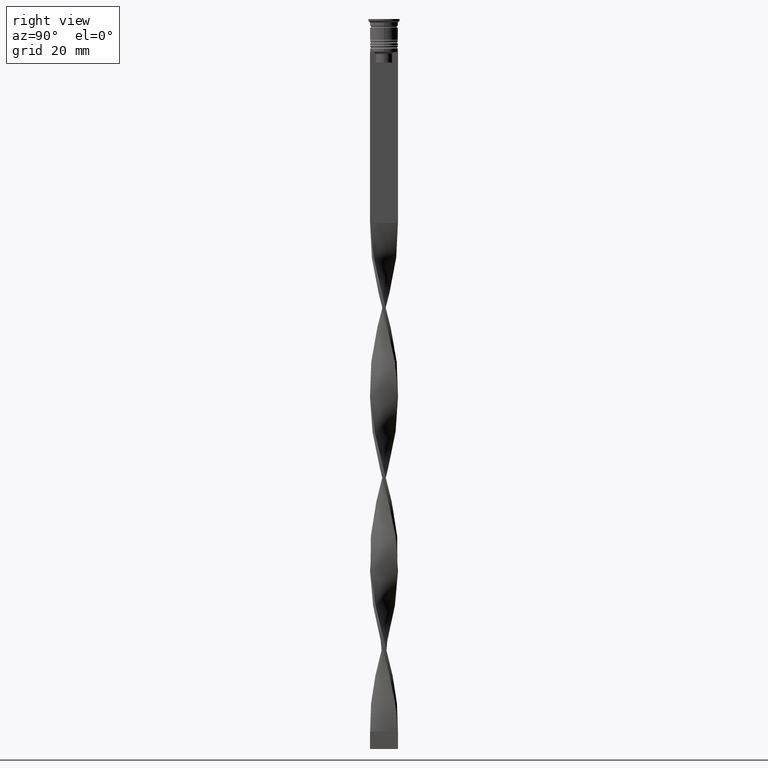
[diagram: clean part render]
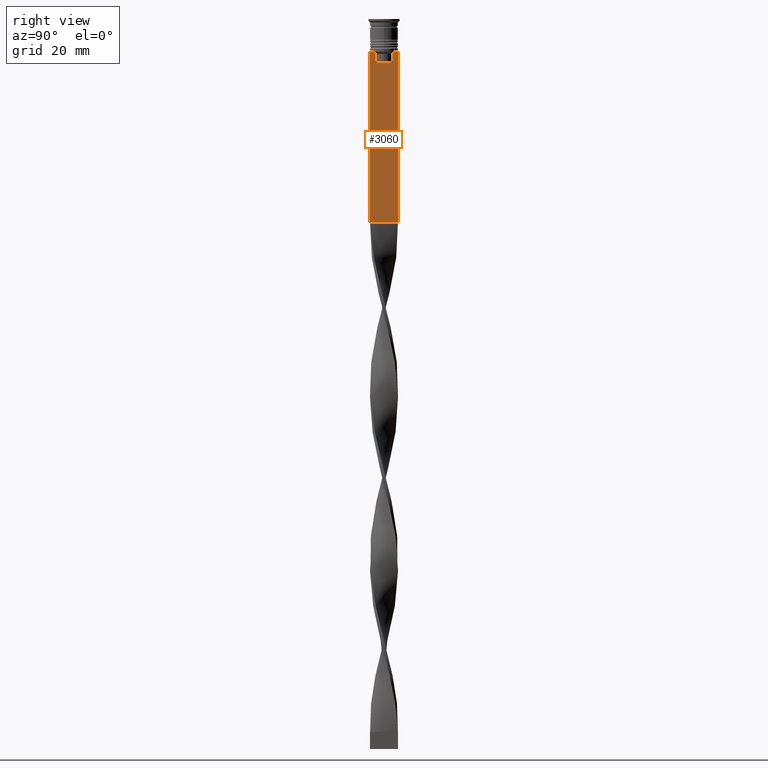
[diagram: same view with one face highlighted and labeled with its STEP entity id]
A machine part, right view. The second image highlights one B-rep face of the part: STEP entity #3060.
In plain terms, the highlighted planar face has unit normal (-1, 0, 0).
Its self-contained STEP definition (entity closure, byte-faithful):
#7 = VERTEX_POINT ( 'NONE', #939 ) ;
#10 = EDGE_CURVE ( 'NONE', #1416, #680, #104, .T. ) ;
#104 = B_SPLINE_CURVE_WITH_KNOTS ( 'NONE', 3,
 ( #3326, #2472, #893, #3309 ),
 .UNSPECIFIED., .F., .F.,
 ( 4, 4 ),
 ( 0.01178336557230038467, 0.01249758354768160280 ),
 .UNSPECIFIED. ) ;
#126 = ORIENTED_EDGE ( 'NONE', *, *, #3329, .T. ) ;
#132 = VERTEX_POINT ( 'NONE', #1262 ) ;
#142 = CARTESIAN_POINT ( 'NONE',  ( 0.5000000000000000000, -4.000000000000000000, -9.500000000000000000 ) ) ;
#167 = VECTOR ( 'NONE', #3327, 1000.000000000000000 ) ;
#191 = CARTESIAN_POINT ( 'NONE',  ( 0.5000000000000000000, 2.856571371417138572, -9.500000000000000000 ) ) ;
#228 = VECTOR ( 'NONE', #1852, 1000.000000000000000 ) ;
#308 = ORIENTED_EDGE ( 'NONE', *, *, #3682, .T. ) ;
#428 = ORIENTED_EDGE ( 'NONE', *, *, #2386, .T. ) ;
#436 = CARTESIAN_POINT ( 'NONE',  ( 0.5000000000000000000, -4.000000000000000000, -1.437742251701450202 ) ) ;
#437 = ORIENTED_EDGE ( 'NONE', *, *, #3804, .T. ) ;
#445 = VERTEX_POINT ( 'NONE', #1742 ) ;
#483 = VECTOR ( 'NONE', #2606, 1000.000000000000000 ) ;
#510 = CARTESIAN_POINT ( 'NONE',  ( 0.5000000000000000000, -4.000000000000000000, -9.500000000000000000 ) ) ;
#680 = VERTEX_POINT ( 'NONE', #2439 ) ;
#724 = VERTEX_POINT ( 'NONE', #2811 ) ;
#756 = PLANE ( 'NONE',  #3165 ) ;
#788 = CARTESIAN_POINT ( 'NONE',  ( 0.5000000000000000000, -4.000000000000000000, -9.500000000000000000 ) ) ;
#810 = CARTESIAN_POINT ( 'NONE',  ( 0.5000000000000000000, 2.347338918861097135, -10.00000000000000000 ) ) ;
#889 = CARTESIAN_POINT ( 'NONE',  ( 0.5000000000000000000, 2.856571371417138572, -9.500000000000000000 ) ) ;
#893 = CARTESIAN_POINT ( 'NONE',  ( 0.5000000000000000000, -2.687095498514037839, -9.666937905752043037 ) ) ;
#894 = LINE ( 'NONE', #2145, #167 ) ;
#939 = CARTESIAN_POINT ( 'NONE',  ( 0.5000000000000000000, 2.347338918861097135, -12.50000000000000000 ) ) ;
#940 = CARTESIAN_POINT ( 'NONE',  ( 0.5000000000000000000, -4.000000000000000000, -58.50000000000000000 ) ) ;
#993 = LINE ( 'NONE', #2226, #2481 ) ;
#1063 = ORIENTED_EDGE ( 'NONE', *, *, #3283, .T. ) ;
#1262 = CARTESIAN_POINT ( 'NONE',  ( 0.5000000000000000000, -3.867815921162741422, -9.500000000000000000 ) ) ;
#1335 = VERTEX_POINT ( 'NONE', #2426 ) ;
#1396 = DIRECTION ( 'NONE',  ( 0.000000000000000000, -1.000000000000000000, 0.000000000000000000 ) ) ;
#1416 = VERTEX_POINT ( 'NONE', #2539 ) ;
#1504 = VECTOR ( 'NONE', #2170, 1000.000000000000000 ) ;
#1667 = DIRECTION ( 'NONE',  ( 0.000000000000000000, -1.000000000000000000, 0.000000000000000000 ) ) ;
#1710 = VECTOR ( 'NONE', #1396, 1000.000000000000000 ) ;
#1719 = CARTESIAN_POINT ( 'NONE',  ( 0.5000000000000000000, 2.687094542495898075, -9.666938847453439010 ) ) ;
#1742 = CARTESIAN_POINT ( 'NONE',  ( 0.5000000000000000000, -2.347338918861097135, -12.50000000000000000 ) ) ;
#1768 = VECTOR ( 'NONE', #3049, 1000.000000000000000 ) ;
#1778 = EDGE_CURVE ( 'NONE', #2884, #3489, #3198, .T. ) ;
#1845 = ORIENTED_EDGE ( 'NONE', *, *, #2788, .F. ) ;
#1852 = DIRECTION ( 'NONE',  ( 0.000000000000000000, 0.000000000000000000, -1.000000000000000000 ) ) ;
#1854 = LINE ( 'NONE', #2154, #1768 ) ;
#1963 = FACE_OUTER_BOUND ( 'NONE', #3162, .T. ) ;
#2020 = LINE ( 'NONE', #510, #2344 ) ;
#2076 = DIRECTION ( 'NONE',  ( 0.000000000000000000, -1.000000000000000000, 0.000000000000000000 ) ) ;
#2121 = VERTEX_POINT ( 'NONE', #3898 ) ;
#2145 = CARTESIAN_POINT ( 'NONE',  ( 0.5000000000000000000, 2.399999999999996803, -12.50000000000000000 ) ) ;
#2154 = CARTESIAN_POINT ( 'NONE',  ( 0.5000000000000000000, -2.347338918861097135, 0.000000000000000000 ) ) ;
#2157 = ORIENTED_EDGE ( 'NONE', *, *, #10, .T. ) ;
#2170 = DIRECTION ( 'NONE',  ( 0.000000000000000000, 1.000000000000000000, 0.000000000000000000 ) ) ;
#2178 = ORIENTED_EDGE ( 'NONE', *, *, #2428, .T. ) ;
#2188 = ORIENTED_EDGE ( 'NONE', *, *, #3176, .T. ) ;
#2226 = CARTESIAN_POINT ( 'NONE',  ( 0.5000000000000000000, 2.347338918861097135, 0.000000000000000000 ) ) ;
#2231 = CARTESIAN_POINT ( 'NONE',  ( 0.5000000000000000000, 4.000000000000000000, -1.437742251701450202 ) ) ;
#2300 = DIRECTION ( 'NONE',  ( 0.000000000000000000, 0.000000000000000000, -1.000000000000000000 ) ) ;
#2344 = VECTOR ( 'NONE', #2076, 1000.000000000000000 ) ;
#2362 = ORIENTED_EDGE ( 'NONE', *, *, #1778, .T. ) ;
#2377 = CARTESIAN_POINT ( 'NONE',  ( 0.5000000000000000000, -4.000000000000000000, -9.500000000000000000 ) ) ;
#2386 = EDGE_CURVE ( 'NONE', #7, #445, #894, .T. ) ;
#2426 = CARTESIAN_POINT ( 'NONE',  ( 0.5000000000000000000, -4.000000000000000000, -58.50000000000000000 ) ) ;
#2428 = EDGE_CURVE ( 'NONE', #1335, #2121, #2473, .T. ) ;
#2439 = CARTESIAN_POINT ( 'NONE',  ( 0.5000000000000000000, -2.856571371417138572, -9.500000000000000000 ) ) ;
#2472 = CARTESIAN_POINT ( 'NONE',  ( 0.5000000000000000000, -2.517408374291112416, -9.833662228483172285 ) ) ;
#2473 = LINE ( 'NONE', #940, #1504 ) ;
#2481 = VECTOR ( 'NONE', #3773, 1000.000000000000000 ) ;
#2509 = DIRECTION ( 'NONE',  ( 0.000000000000000000, 0.000000000000000000, 1.000000000000000000 ) ) ;
#2539 = CARTESIAN_POINT ( 'NONE',  ( 0.5000000000000000000, -2.347338918861097135, -10.00000000000000000 ) ) ;
#2606 = DIRECTION ( 'NONE',  ( 0.000000000000000000, -1.000000000000000000, 0.000000000000000000 ) ) ;
#2622 = LINE ( 'NONE', #3843, #3920 ) ;
#2624 = ORIENTED_EDGE ( 'NONE', *, *, #3120, .T. ) ;
#2639 = ORIENTED_EDGE ( 'NONE', *, *, #3343, .T. ) ;
#2683 = CARTESIAN_POINT ( 'NONE',  ( 0.5000000000000000000, 2.517407211010872281, -9.833663366238582171 ) ) ;
#2788 = EDGE_CURVE ( 'NONE', #3192, #2121, #3138, .T. ) ;
#2811 = CARTESIAN_POINT ( 'NONE',  ( 0.5000000000000000000, 2.347338918861097135, -10.00000000000000000 ) ) ;
#2859 = VERTEX_POINT ( 'NONE', #3324 ) ;
#2868 = DIRECTION ( 'NONE',  ( -1.000000000000000000, 0.000000000000000000, 0.000000000000000000 ) ) ;
#2884 = VERTEX_POINT ( 'NONE', #3661 ) ;
#2929 = LINE ( 'NONE', #788, #1710 ) ;
#3049 = DIRECTION ( 'NONE',  ( -0.000000000000000000, -0.000000000000000000, 1.000000000000000000 ) ) ;
#3060 = ADVANCED_FACE ( 'NONE', ( #1963 ), #756, .F. ) ;
#3083 = B_SPLINE_CURVE_WITH_KNOTS ( 'NONE', 3,
 ( #191, #1719, #2683, #810 ),
 .UNSPECIFIED., .F., .F.,
 ( 4, 4 ),
 ( 0.004956812174141191595, 0.005670477137898149653 ),
 .UNSPECIFIED. ) ;
#3120 = EDGE_CURVE ( 'NONE', #724, #7, #993, .T. ) ;
#3138 = LINE ( 'NONE', #2231, #228 ) ;
#3162 = EDGE_LOOP ( 'NONE', ( #2362, #2188, #2624, #428, #437, #2157, #126, #1063, #308, #2178, #1845, #2639 ) ) ;
#3165 = AXIS2_PLACEMENT_3D ( 'NONE', #436, #2868, #2509 ) ;
#3176 = EDGE_CURVE ( 'NONE', #3489, #724, #3083, .T. ) ;
#3192 = VERTEX_POINT ( 'NONE', #3255 ) ;
#3198 = LINE ( 'NONE', #142, #3466 ) ;
#3255 = CARTESIAN_POINT ( 'NONE',  ( 0.5000000000000000000, 4.000000000000000000, -9.500000000000000000 ) ) ;
#3283 = EDGE_CURVE ( 'NONE', #132, #2859, #3849, .T. ) ;
#3309 = CARTESIAN_POINT ( 'NONE',  ( 0.5000000000000000000, -2.856571371417138572, -9.500000000000000000 ) ) ;
#3324 = CARTESIAN_POINT ( 'NONE',  ( 0.5000000000000000000, -4.000000000000000000, -9.500000000000000000 ) ) ;
#3326 = CARTESIAN_POINT ( 'NONE',  ( 0.5000000000000000000, -2.347338918861097135, -10.00000000000000000 ) ) ;
#3327 = DIRECTION ( 'NONE',  ( 0.000000000000000000, -1.000000000000000000, 0.000000000000000000 ) ) ;
#3329 = EDGE_CURVE ( 'NONE', #680, #132, #2020, .T. ) ;
#3343 = EDGE_CURVE ( 'NONE', #3192, #2884, #2929, .T. ) ;
#3466 = VECTOR ( 'NONE', #1667, 1000.000000000000000 ) ;
#3489 = VERTEX_POINT ( 'NONE', #889 ) ;
#3661 = CARTESIAN_POINT ( 'NONE',  ( 0.5000000000000000000, 3.867815921162741422, -9.500000000000000000 ) ) ;
#3682 = EDGE_CURVE ( 'NONE', #2859, #1335, #2622, .T. ) ;
#3773 = DIRECTION ( 'NONE',  ( 0.000000000000000000, 0.000000000000000000, -1.000000000000000000 ) ) ;
#3804 = EDGE_CURVE ( 'NONE', #445, #1416, #1854, .T. ) ;
#3843 = CARTESIAN_POINT ( 'NONE',  ( 0.5000000000000000000, -4.000000000000000000, -1.437742251701450202 ) ) ;
#3849 = LINE ( 'NONE', #2377, #483 ) ;
#3898 = CARTESIAN_POINT ( 'NONE',  ( 0.5000000000000000000, 4.000000000000000000, -58.50000000000000000 ) ) ;
#3920 = VECTOR ( 'NONE', #2300, 1000.000000000000000 ) ;